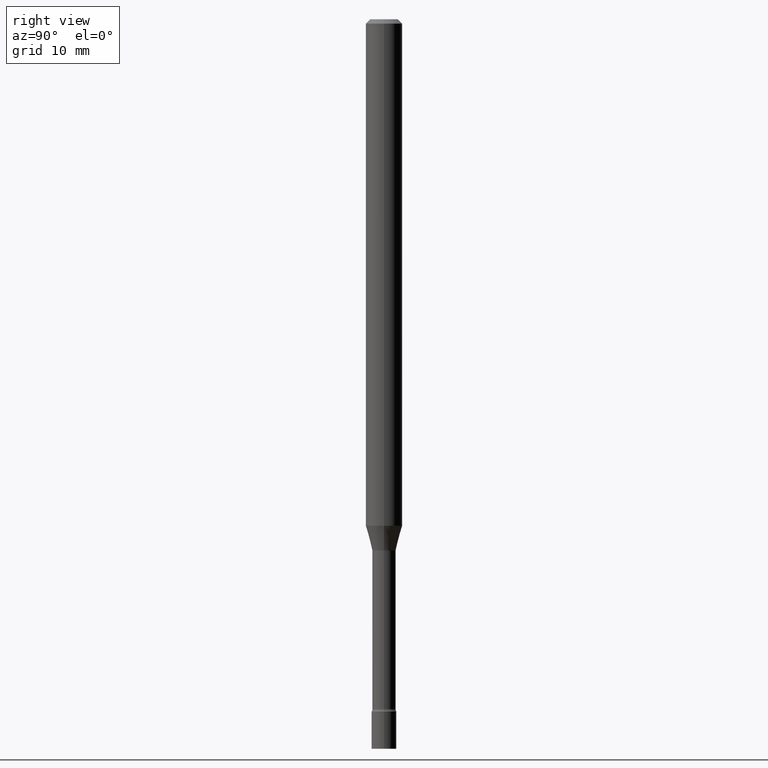
[diagram: clean part render]
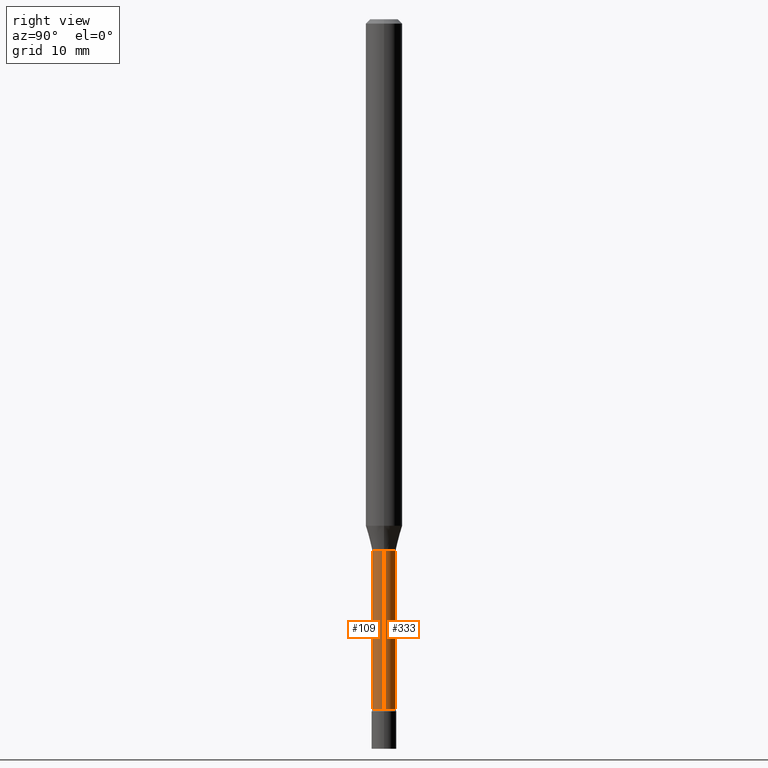
[diagram: same view with one multi-face feature highlighted, each face labeled with its STEP entity id]
A machine part, right view. The highlighted faces form ONE feature: a constant-radius fillet chain: 2 tangent blend faces with common blend radius 1.0147 mm. The faces share edges in the B-rep.
Their STEP definitions:
[1] entity #333 (Cylinder):
#13 = VERTEX_POINT ( 'NONE', #80 ) ;
#17 = EDGE_CURVE ( 'NONE', #218, #222, #506, .T. ) ;
#23 = AXIS2_PLACEMENT_3D ( 'NONE', #294, #453, #263 ) ;
#35 = CYLINDRICAL_SURFACE ( 'NONE', #492, 0.03995000000000000634 ) ;
#42 = AXIS2_PLACEMENT_3D ( 'NONE', #318, #111, #238 ) ;
#43 = CARTESIAN_POINT ( 'NONE',  ( 0.03995000000000000634, -2.789693589735664269E-16, 1.948032621930476817E-30 ) ) ;
#80 = CARTESIAN_POINT ( 'NONE',  ( 0.03995000000000003409, -8.531551787657965879E-15, -2.363633549139569023 ) ) ;
#104 = CARTESIAN_POINT ( 'NONE',  ( -0.03995000000000003409, -7.974266839393067657E-15, -2.363633549139569023 ) ) ;
#111 = DIRECTION ( 'NONE',  ( -2.445468806185136597E-29, 3.491481338843145583E-15, 1.000000000000000000 ) ) ;
#112 = DIRECTION ( 'NONE',  ( 1.000000000000000000, -6.982962677686267499E-15, 4.876176775795936353E-29 ) ) ;
#160 = FACE_OUTER_BOUND ( 'NONE', #375, .T. ) ;
#165 = LINE ( 'NONE', #43, #409 ) ;
#218 = VERTEX_POINT ( 'NONE', #383 ) ;
#222 = VERTEX_POINT ( 'NONE', #494 ) ;
#223 = LINE ( 'NONE', #254, #258 ) ;
#238 = DIRECTION ( 'NONE',  ( 1.000000000000000000, -6.982962677686276966E-15, 0.000000000000000000 ) ) ;
#250 = ORIENTED_EDGE ( 'NONE', *, *, #282, .T. ) ;
#254 = CARTESIAN_POINT ( 'NONE',  ( -0.03995000000000000634, 2.838618229361600693E-16, -1.965114568556835300E-30 ) ) ;
#258 = VECTOR ( 'NONE', #502, 39.37007874015748143 ) ;
#263 = DIRECTION ( 'NONE',  ( 1.000000000000000000, -6.982962677686269866E-15, 0.000000000000000000 ) ) ;
#271 = EDGE_CURVE ( 'NONE', #290, #222, #223, .T. ) ;
#282 = EDGE_CURVE ( 'NONE', #13, #290, #487, .T. ) ;
#287 = ORIENTED_EDGE ( 'NONE', *, *, #450, .F. ) ;
#290 = VERTEX_POINT ( 'NONE', #104 ) ;
#294 = CARTESIAN_POINT ( 'NONE',  ( 5.780192113673479644E-29, -8.252582428684399354E-15, -2.363633549139569023 ) ) ;
#318 = CARTESIAN_POINT ( 'NONE',  ( 4.455582508398544114E-29, -6.361390970272603150E-15, -1.821974787463811252 ) ) ;
#333 = ADVANCED_FACE ( 'NONE', ( #160 ), #35, .T. ) ;
#375 = EDGE_LOOP ( 'NONE', ( #250, #445, #443, #287 ) ) ;
#383 = CARTESIAN_POINT ( 'NONE',  ( 0.03994999999999999246, -6.640360329246169675E-15, -1.821974787463811252 ) ) ;
#400 = CARTESIAN_POINT ( 'NONE',  ( 0.000000000000000000, 0.000000000000000000, 0.000000000000000000 ) ) ;
#409 = VECTOR ( 'NONE', #515, 39.37007874015748143 ) ;
#443 = ORIENTED_EDGE ( 'NONE', *, *, #17, .F. ) ;
#445 = ORIENTED_EDGE ( 'NONE', *, *, #271, .T. ) ;
#450 = EDGE_CURVE ( 'NONE', #13, #218, #165, .T. ) ;
#453 = DIRECTION ( 'NONE',  ( -2.445468806185136597E-29, 3.491481338843145583E-15, 1.000000000000000000 ) ) ;
#473 = DIRECTION ( 'NONE',  ( -2.445468806185136597E-29, 3.491481338843145583E-15, 1.000000000000000000 ) ) ;
#487 = CIRCLE ( 'NONE', #23, 0.03995000000000003409 ) ;
#492 = AXIS2_PLACEMENT_3D ( 'NONE', #400, #473, #112 ) ;
#494 = CARTESIAN_POINT ( 'NONE',  ( -0.03994999999999999246, -7.023124876542340936E-15, -1.821974787463811252 ) ) ;
#502 = DIRECTION ( 'NONE',  ( -2.445468806185136877E-29, 3.491481338843145188E-15, 1.000000000000000000 ) ) ;
#506 = CIRCLE ( 'NONE', #42, 0.03994999999999999246 ) ;
#515 = DIRECTION ( 'NONE',  ( -2.445468806185136877E-29, 3.491481338843145188E-15, 1.000000000000000000 ) ) ;
[2] entity #109 (Cylinder):
#13 = VERTEX_POINT ( 'NONE', #80 ) ;
#22 = CIRCLE ( 'NONE', #319, 0.03994999999999999246 ) ;
#30 = EDGE_LOOP ( 'NONE', ( #172, #350, #268, #127 ) ) ;
#43 = CARTESIAN_POINT ( 'NONE',  ( 0.03995000000000000634, -2.789693589735664269E-16, 1.948032621930476817E-30 ) ) ;
#80 = CARTESIAN_POINT ( 'NONE',  ( 0.03995000000000003409, -8.531551787657965879E-15, -2.363633549139569023 ) ) ;
#93 = CIRCLE ( 'NONE', #447, 0.03995000000000003409 ) ;
#104 = CARTESIAN_POINT ( 'NONE',  ( -0.03995000000000003409, -7.974266839393067657E-15, -2.363633549139569023 ) ) ;
#109 = ADVANCED_FACE ( 'NONE', ( #164 ), #272, .T. ) ;
#125 = DIRECTION ( 'NONE',  ( 1.000000000000000000, -6.982962677686269866E-15, 0.000000000000000000 ) ) ;
#127 = ORIENTED_EDGE ( 'NONE', *, *, #154, .F. ) ;
#154 = EDGE_CURVE ( 'NONE', #222, #218, #22, .T. ) ;
#161 = EDGE_CURVE ( 'NONE', #290, #13, #93, .T. ) ;
#164 = FACE_OUTER_BOUND ( 'NONE', #30, .T. ) ;
#165 = LINE ( 'NONE', #43, #409 ) ;
#172 = ORIENTED_EDGE ( 'NONE', *, *, #271, .F. ) ;
#218 = VERTEX_POINT ( 'NONE', #383 ) ;
#222 = VERTEX_POINT ( 'NONE', #494 ) ;
#223 = LINE ( 'NONE', #254, #258 ) ;
#232 = DIRECTION ( 'NONE',  ( 1.000000000000000000, -6.982962677686267499E-15, 4.876176775795936353E-29 ) ) ;
#254 = CARTESIAN_POINT ( 'NONE',  ( -0.03995000000000000634, 2.838618229361600693E-16, -1.965114568556835300E-30 ) ) ;
#258 = VECTOR ( 'NONE', #502, 39.37007874015748143 ) ;
#268 = ORIENTED_EDGE ( 'NONE', *, *, #450, .T. ) ;
#271 = EDGE_CURVE ( 'NONE', #290, #222, #223, .T. ) ;
#272 = CYLINDRICAL_SURFACE ( 'NONE', #456, 0.03995000000000000634 ) ;
#277 = CARTESIAN_POINT ( 'NONE',  ( 0.000000000000000000, 0.000000000000000000, 0.000000000000000000 ) ) ;
#290 = VERTEX_POINT ( 'NONE', #104 ) ;
#319 = AXIS2_PLACEMENT_3D ( 'NONE', #435, #520, #486 ) ;
#330 = DIRECTION ( 'NONE',  ( -2.445468806185136597E-29, 3.491481338843145583E-15, 1.000000000000000000 ) ) ;
#350 = ORIENTED_EDGE ( 'NONE', *, *, #161, .T. ) ;
#383 = CARTESIAN_POINT ( 'NONE',  ( 0.03994999999999999246, -6.640360329246169675E-15, -1.821974787463811252 ) ) ;
#409 = VECTOR ( 'NONE', #515, 39.37007874015748143 ) ;
#423 = CARTESIAN_POINT ( 'NONE',  ( 5.780192113673479644E-29, -8.252582428684399354E-15, -2.363633549139569023 ) ) ;
#435 = CARTESIAN_POINT ( 'NONE',  ( 4.455582508398544114E-29, -6.361390970272603150E-15, -1.821974787463811252 ) ) ;
#447 = AXIS2_PLACEMENT_3D ( 'NONE', #423, #330, #125 ) ;
#450 = EDGE_CURVE ( 'NONE', #13, #218, #165, .T. ) ;
#456 = AXIS2_PLACEMENT_3D ( 'NONE', #277, #480, #232 ) ;
#480 = DIRECTION ( 'NONE',  ( -2.445468806185136597E-29, 3.491481338843145583E-15, 1.000000000000000000 ) ) ;
#486 = DIRECTION ( 'NONE',  ( 1.000000000000000000, -6.982962677686276966E-15, 0.000000000000000000 ) ) ;
#494 = CARTESIAN_POINT ( 'NONE',  ( -0.03994999999999999246, -7.023124876542340936E-15, -1.821974787463811252 ) ) ;
#502 = DIRECTION ( 'NONE',  ( -2.445468806185136877E-29, 3.491481338843145188E-15, 1.000000000000000000 ) ) ;
#515 = DIRECTION ( 'NONE',  ( -2.445468806185136877E-29, 3.491481338843145188E-15, 1.000000000000000000 ) ) ;
#520 = DIRECTION ( 'NONE',  ( -2.445468806185136597E-29, 3.491481338843145583E-15, 1.000000000000000000 ) ) ;